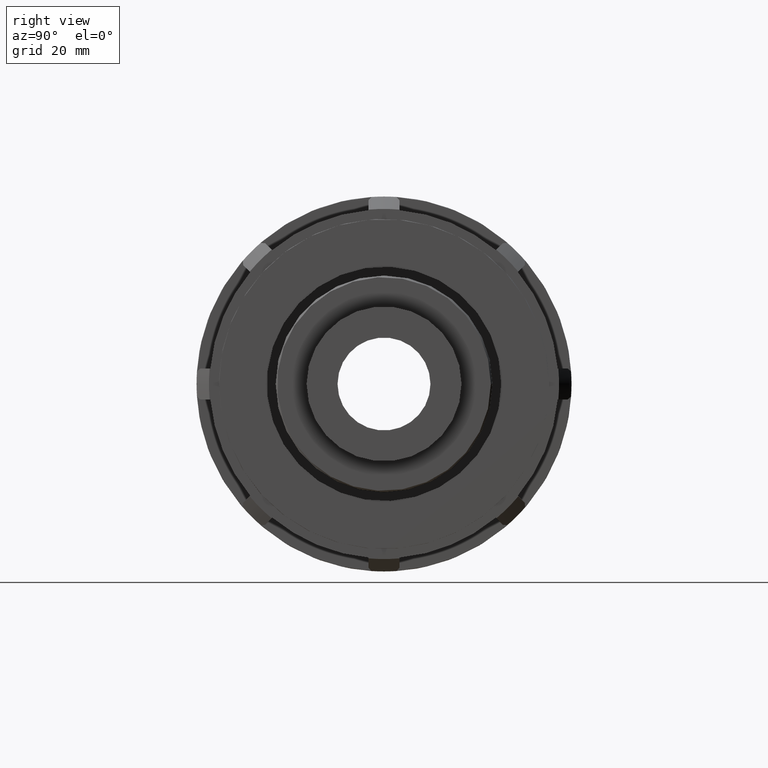
[diagram: clean part render]
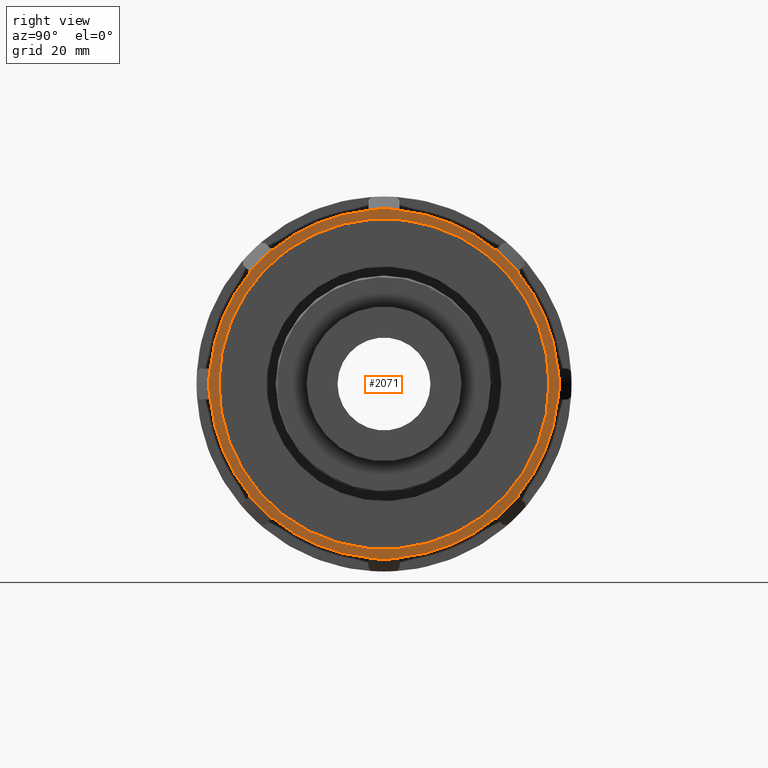
[diagram: same view with one face highlighted and labeled with its STEP entity id]
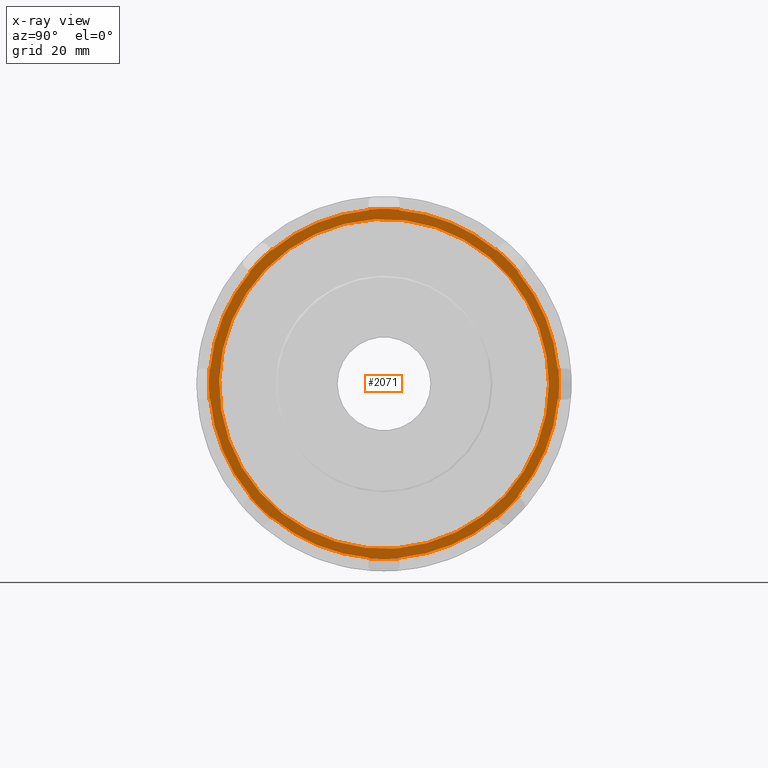
[diagram: x-ray of the same camera — body ghosted, the highlighted face saturated]
A machine part, right view. The second image highlights one B-rep face of the part: STEP entity #2071.
The next image is the same camera in x-ray: the body ghosted, the highlighted face saturated — about 0% of this face is hidden behind the body in this view.
In plain terms, the highlighted planar face has unit normal (1, 0, 0).
Its self-contained STEP definition (entity closure, byte-faithful):
#65=FACE_BOUND('',#411,.T.);
#112=CIRCLE('',#2171,29.88472);
#129=CIRCLE('',#2193,29.88472);
#130=CIRCLE('',#2198,29.88472);
#131=CIRCLE('',#2203,29.88472);
#132=CIRCLE('',#2208,29.88472);
#133=CIRCLE('',#2213,29.88472);
#134=CIRCLE('',#2218,29.88472);
#142=CIRCLE('',#2243,29.76);
#143=CIRCLE('',#2245,29.76);
#144=CIRCLE('',#2247,29.76);
#145=CIRCLE('',#2249,29.76);
#146=CIRCLE('',#2251,29.76);
#147=CIRCLE('',#2253,29.76);
#148=CIRCLE('',#2255,29.76);
#149=CIRCLE('',#2257,29.76);
#150=CIRCLE('',#2258,29.88472);
#151=CIRCLE('',#2259,28.16);
#288=FACE_OUTER_BOUND('',#410,.T.);
#410=EDGE_LOOP('',(#1808,#1809,#1810,#1811,#1812,#1813,#1814,#1815,#1816,
#1817,#1818,#1819,#1820,#1821,#1822,#1823,#1824,#1825,#1826,#1827,#1828,
#1829,#1830,#1831,#1832,#1833,#1834,#1835,#1836,#1837,#1838,#1839));
#411=EDGE_LOOP('',(#1840));
#555=LINE('',#3211,#735);
#562=LINE('',#3243,#742);
#569=LINE('',#3275,#749);
#576=LINE('',#3307,#756);
#583=LINE('',#3339,#763);
#590=LINE('',#3371,#770);
#597=LINE('',#3403,#777);
#598=LINE('',#3406,#778);
#601=LINE('',#3412,#781);
#604=LINE('',#3418,#784);
#607=LINE('',#3424,#787);
#610=LINE('',#3430,#790);
#613=LINE('',#3436,#793);
#616=LINE('',#3442,#796);
#622=LINE('',#3484,#802);
#623=LINE('',#3487,#803);
#735=VECTOR('',#2594,0.125213116454759);
#742=VECTOR('',#2611,0.125213116454761);
#749=VECTOR('',#2628,0.125213116454758);
#756=VECTOR('',#2645,0.125213116454761);
#763=VECTOR('',#2662,0.125213116454764);
#770=VECTOR('',#2679,0.125213116454757);
#777=VECTOR('',#2696,0.125213116454764);
#778=VECTOR('',#2699,0.125213116454764);
#781=VECTOR('',#2704,0.125213116454758);
#784=VECTOR('',#2709,0.125213116454757);
#787=VECTOR('',#2714,0.125213116454758);
#790=VECTOR('',#2719,0.125213116454757);
#793=VECTOR('',#2724,0.125213116454764);
#796=VECTOR('',#2729,0.125213116454757);
#802=VECTOR('',#2795,0.125213116454752);
#803=VECTOR('',#2798,0.125213116454752);
#893=VERTEX_POINT('',#3131);
#894=VERTEX_POINT('',#3135);
#927=VERTEX_POINT('',#3209);
#931=VERTEX_POINT('',#3225);
#932=VERTEX_POINT('',#3229);
#935=VERTEX_POINT('',#3241);
#939=VERTEX_POINT('',#3257);
#940=VERTEX_POINT('',#3261);
#943=VERTEX_POINT('',#3273);
#947=VERTEX_POINT('',#3289);
#948=VERTEX_POINT('',#3293);
#951=VERTEX_POINT('',#3305);
#955=VERTEX_POINT('',#3321);
#956=VERTEX_POINT('',#3325);
#959=VERTEX_POINT('',#3337);
#963=VERTEX_POINT('',#3353);
#964=VERTEX_POINT('',#3357);
#967=VERTEX_POINT('',#3369);
#971=VERTEX_POINT('',#3385);
#972=VERTEX_POINT('',#3389);
#975=VERTEX_POINT('',#3401);
#976=VERTEX_POINT('',#3405);
#978=VERTEX_POINT('',#3411);
#980=VERTEX_POINT('',#3417);
#982=VERTEX_POINT('',#3423);
#984=VERTEX_POINT('',#3429);
#986=VERTEX_POINT('',#3435);
#988=VERTEX_POINT('',#3441);
#992=VERTEX_POINT('',#3465);
#993=VERTEX_POINT('',#3481);
#994=VERTEX_POINT('',#3483);
#995=VERTEX_POINT('',#3485);
#996=VERTEX_POINT('',#3488);
#1135=EDGE_CURVE('',#893,#894,#112,.T.);
#1172=EDGE_CURVE('',#893,#927,#555,.T.);
#1178=EDGE_CURVE('',#931,#932,#129,.T.);
#1184=EDGE_CURVE('',#931,#935,#562,.T.);
#1190=EDGE_CURVE('',#939,#940,#130,.T.);
#1196=EDGE_CURVE('',#939,#943,#569,.T.);
#1202=EDGE_CURVE('',#947,#948,#131,.T.);
#1208=EDGE_CURVE('',#947,#951,#576,.T.);
#1214=EDGE_CURVE('',#955,#956,#132,.T.);
#1220=EDGE_CURVE('',#955,#959,#583,.T.);
#1226=EDGE_CURVE('',#963,#964,#133,.T.);
#1232=EDGE_CURVE('',#963,#967,#590,.T.);
#1238=EDGE_CURVE('',#971,#972,#134,.T.);
#1244=EDGE_CURVE('',#971,#975,#597,.T.);
#1245=EDGE_CURVE('',#976,#972,#598,.T.);
#1248=EDGE_CURVE('',#978,#894,#601,.T.);
#1251=EDGE_CURVE('',#980,#932,#604,.T.);
#1254=EDGE_CURVE('',#982,#940,#607,.T.);
#1257=EDGE_CURVE('',#984,#948,#610,.T.);
#1260=EDGE_CURVE('',#986,#956,#613,.T.);
#1263=EDGE_CURVE('',#988,#964,#616,.T.);
#1275=EDGE_CURVE('',#992,#976,#142,.T.);
#1277=EDGE_CURVE('',#975,#988,#143,.T.);
#1278=EDGE_CURVE('',#967,#986,#144,.T.);
#1279=EDGE_CURVE('',#959,#984,#145,.T.);
#1280=EDGE_CURVE('',#951,#982,#146,.T.);
#1281=EDGE_CURVE('',#943,#980,#147,.T.);
#1282=EDGE_CURVE('',#935,#978,#148,.T.);
#1283=EDGE_CURVE('',#927,#993,#149,.T.);
#1284=EDGE_CURVE('',#993,#994,#622,.T.);
#1285=EDGE_CURVE('',#995,#994,#150,.T.);
#1286=EDGE_CURVE('',#995,#992,#623,.T.);
#1287=EDGE_CURVE('',#996,#996,#151,.T.);
#1808=ORIENTED_EDGE('',*,*,#1135,.F.);
#1809=ORIENTED_EDGE('',*,*,#1172,.T.);
#1810=ORIENTED_EDGE('',*,*,#1283,.T.);
#1811=ORIENTED_EDGE('',*,*,#1284,.T.);
#1812=ORIENTED_EDGE('',*,*,#1285,.F.);
#1813=ORIENTED_EDGE('',*,*,#1286,.T.);
#1814=ORIENTED_EDGE('',*,*,#1275,.T.);
#1815=ORIENTED_EDGE('',*,*,#1245,.T.);
#1816=ORIENTED_EDGE('',*,*,#1238,.F.);
#1817=ORIENTED_EDGE('',*,*,#1244,.T.);
#1818=ORIENTED_EDGE('',*,*,#1277,.T.);
#1819=ORIENTED_EDGE('',*,*,#1263,.T.);
#1820=ORIENTED_EDGE('',*,*,#1226,.F.);
#1821=ORIENTED_EDGE('',*,*,#1232,.T.);
#1822=ORIENTED_EDGE('',*,*,#1278,.T.);
#1823=ORIENTED_EDGE('',*,*,#1260,.T.);
#1824=ORIENTED_EDGE('',*,*,#1214,.F.);
#1825=ORIENTED_EDGE('',*,*,#1220,.T.);
#1826=ORIENTED_EDGE('',*,*,#1279,.T.);
#1827=ORIENTED_EDGE('',*,*,#1257,.T.);
#1828=ORIENTED_EDGE('',*,*,#1202,.F.);
#1829=ORIENTED_EDGE('',*,*,#1208,.T.);
#1830=ORIENTED_EDGE('',*,*,#1280,.T.);
#1831=ORIENTED_EDGE('',*,*,#1254,.T.);
#1832=ORIENTED_EDGE('',*,*,#1190,.F.);
#1833=ORIENTED_EDGE('',*,*,#1196,.T.);
#1834=ORIENTED_EDGE('',*,*,#1281,.T.);
#1835=ORIENTED_EDGE('',*,*,#1251,.T.);
#1836=ORIENTED_EDGE('',*,*,#1178,.F.);
#1837=ORIENTED_EDGE('',*,*,#1184,.T.);
#1838=ORIENTED_EDGE('',*,*,#1282,.T.);
#1839=ORIENTED_EDGE('',*,*,#1248,.T.);
#1840=ORIENTED_EDGE('',*,*,#1287,.F.);
#1967=PLANE('',#2256);
#2071=ADVANCED_FACE('',(#288,#65),#1967,.T.);
#2171=AXIS2_PLACEMENT_3D('',#3136,#2535,#2536);
#2193=AXIS2_PLACEMENT_3D('',#3230,#2601,#2602);
#2198=AXIS2_PLACEMENT_3D('',#3262,#2618,#2619);
#2203=AXIS2_PLACEMENT_3D('',#3294,#2635,#2636);
#2208=AXIS2_PLACEMENT_3D('',#3326,#2652,#2653);
#2213=AXIS2_PLACEMENT_3D('',#3358,#2669,#2670);
#2218=AXIS2_PLACEMENT_3D('',#3390,#2686,#2687);
#2243=AXIS2_PLACEMENT_3D('',#3466,#2764,#2765);
#2245=AXIS2_PLACEMENT_3D('',#3469,#2769,#2770);
#2247=AXIS2_PLACEMENT_3D('',#3471,#2773,#2774);
#2249=AXIS2_PLACEMENT_3D('',#3473,#2777,#2778);
#2251=AXIS2_PLACEMENT_3D('',#3475,#2781,#2782);
#2253=AXIS2_PLACEMENT_3D('',#3477,#2785,#2786);
#2255=AXIS2_PLACEMENT_3D('',#3479,#2789,#2790);
#2256=AXIS2_PLACEMENT_3D('',#3480,#2791,#2792);
#2257=AXIS2_PLACEMENT_3D('',#3482,#2793,#2794);
#2258=AXIS2_PLACEMENT_3D('',#3486,#2796,#2797);
#2259=AXIS2_PLACEMENT_3D('',#3489,#2799,#2800);
#2535=DIRECTION('center_axis',(-1.,0.,0.));
#2536=DIRECTION('ref_axis',(0.,1.,0.));
#2594=DIRECTION('',(0.,-0.707106781186548,-0.707106781186547));
#2601=DIRECTION('center_axis',(-1.,0.,0.));
#2602=DIRECTION('ref_axis',(0.,1.,0.));
#2611=DIRECTION('',(0.,-1.,0.));
#2618=DIRECTION('center_axis',(-1.,0.,0.));
#2619=DIRECTION('ref_axis',(0.,1.,0.));
#2628=DIRECTION('',(0.,-0.707106781186547,0.707106781186548));
#2635=DIRECTION('center_axis',(-1.,0.,0.));
#2636=DIRECTION('ref_axis',(0.,1.,0.));
#2645=DIRECTION('',(0.,0.,1.));
#2652=DIRECTION('center_axis',(-1.,0.,0.));
#2653=DIRECTION('ref_axis',(0.,-1.,0.));
#2662=DIRECTION('',(0.,0.707106781186547,0.707106781186548));
#2669=DIRECTION('center_axis',(-1.,0.,0.));
#2670=DIRECTION('ref_axis',(0.,-1.,0.));
#2679=DIRECTION('',(0.,1.,2.22044604925031E-16));
#2686=DIRECTION('center_axis',(-1.,0.,0.));
#2687=DIRECTION('ref_axis',(0.,-1.,0.));
#2696=DIRECTION('',(0.,0.707106781186548,-0.707106781186547));
#2699=DIRECTION('',(0.,-0.707106781186548,0.707106781186547));
#2704=DIRECTION('',(0.,0.707106781186548,0.707106781186547));
#2709=DIRECTION('',(0.,1.,0.));
#2714=DIRECTION('',(0.,0.707106781186547,-0.707106781186548));
#2719=DIRECTION('',(0.,0.,-1.));
#2724=DIRECTION('',(0.,-0.707106781186547,-0.707106781186548));
#2729=DIRECTION('',(0.,-1.,-2.22044604925031E-16));
#2764=DIRECTION('center_axis',(1.,0.,0.));
#2765=DIRECTION('ref_axis',(0.,0.,-1.));
#2769=DIRECTION('center_axis',(1.,0.,0.));
#2770=DIRECTION('ref_axis',(0.,0.,-1.));
#2773=DIRECTION('center_axis',(1.,0.,0.));
#2774=DIRECTION('ref_axis',(0.,0.,-1.));
#2777=DIRECTION('center_axis',(1.,0.,0.));
#2778=DIRECTION('ref_axis',(0.,0.,-1.));
#2781=DIRECTION('center_axis',(1.,0.,0.));
#2782=DIRECTION('ref_axis',(0.,0.,-1.));
#2785=DIRECTION('center_axis',(1.,0.,0.));
#2786=DIRECTION('ref_axis',(0.,0.,-1.));
#2789=DIRECTION('center_axis',(1.,0.,0.));
#2790=DIRECTION('ref_axis',(0.,0.,-1.));
#2791=DIRECTION('center_axis',(1.,0.,0.));
#2792=DIRECTION('ref_axis',(0.,0.,-1.));
#2793=DIRECTION('center_axis',(1.,0.,0.));
#2794=DIRECTION('ref_axis',(0.,0.,-1.));
#2795=DIRECTION('',(0.,-1.43998400214477E-16,1.));
#2796=DIRECTION('center_axis',(-1.,0.,0.));
#2797=DIRECTION('ref_axis',(0.,1.,0.));
#2798=DIRECTION('',(0.,1.43998400214477E-16,-1.));
#2799=DIRECTION('center_axis',(1.,0.,0.));
#2800=DIRECTION('ref_axis',(0.,0.,-1.));
#3131=CARTESIAN_POINT('',(33.11,19.1791539463241,22.9184760265948));
#3135=CARTESIAN_POINT('',(33.11,22.9184760265948,19.1791539463241));
#3136=CARTESIAN_POINT('Origin',(33.11,0.,0.));
#3209=CARTESIAN_POINT('',(33.11,19.0906149025854,22.8299369828561));
#3211=CARTESIAN_POINT('',(33.11,20.6803803699153,24.419702450186));
#3225=CARTESIAN_POINT('',(33.11,29.767519625733,2.6441));
#3229=CARTESIAN_POINT('',(33.11,29.767519625733,-2.6441));
#3230=CARTESIAN_POINT('Origin',(33.11,0.,0.));
#3241=CARTESIAN_POINT('',(33.11,29.6423065092783,2.6441));
#3243=CARTESIAN_POINT('',(33.11,31.8905743941686,2.6441));
#3257=CARTESIAN_POINT('',(33.11,22.9184760265948,-19.1791539463241));
#3261=CARTESIAN_POINT('',(33.11,19.1791539463241,-22.9184760265948));
#3262=CARTESIAN_POINT('Origin',(33.11,0.,0.));
#3273=CARTESIAN_POINT('',(33.11,22.8299369828561,-19.0906149025854));
#3275=CARTESIAN_POINT('',(33.11,24.419702450186,-20.6803803699153));
#3289=CARTESIAN_POINT('',(33.11,2.6441,-29.767519625733));
#3293=CARTESIAN_POINT('',(33.11,-2.6441,-29.767519625733));
#3294=CARTESIAN_POINT('Origin',(33.11,0.,0.));
#3305=CARTESIAN_POINT('',(33.11,2.6441,-29.6423065092783));
#3307=CARTESIAN_POINT('',(33.11,2.6441,-31.8905743941686));
#3321=CARTESIAN_POINT('',(33.11,-19.1791539463241,-22.9184760265948));
#3325=CARTESIAN_POINT('',(33.11,-22.9184760265948,-19.1791539463241));
#3326=CARTESIAN_POINT('Origin',(33.11,0.,0.));
#3337=CARTESIAN_POINT('',(33.11,-19.0906149025854,-22.8299369828561));
#3339=CARTESIAN_POINT('',(33.11,-20.6803803699153,-24.419702450186));
#3353=CARTESIAN_POINT('',(33.11,-29.767519625733,-2.6441));
#3357=CARTESIAN_POINT('',(33.11,-29.767519625733,2.6441));
#3358=CARTESIAN_POINT('Origin',(33.11,0.,0.));
#3369=CARTESIAN_POINT('',(33.11,-29.6423065092783,-2.6441));
#3371=CARTESIAN_POINT('',(33.11,-31.8905743941686,-2.6441));
#3385=CARTESIAN_POINT('',(33.11,-22.9184760265948,19.1791539463241));
#3389=CARTESIAN_POINT('',(33.11,-19.1791539463241,22.9184760265948));
#3390=CARTESIAN_POINT('Origin',(33.11,0.,0.));
#3401=CARTESIAN_POINT('',(33.11,-22.8299369828561,19.0906149025854));
#3403=CARTESIAN_POINT('',(33.11,-24.419702450186,20.6803803699153));
#3405=CARTESIAN_POINT('',(33.11,-19.0906149025854,22.8299369828561));
#3406=CARTESIAN_POINT('',(33.11,-17.9544951233688,21.6938172036395));
#3411=CARTESIAN_POINT('',(33.11,22.8299369828561,19.0906149025854));
#3412=CARTESIAN_POINT('',(33.11,21.6938172036395,17.9544951233688));
#3417=CARTESIAN_POINT('',(33.11,29.6423065092783,-2.6441));
#3418=CARTESIAN_POINT('',(33.11,28.0355905090298,-2.6441));
#3423=CARTESIAN_POINT('',(33.11,19.0906149025854,-22.8299369828561));
#3424=CARTESIAN_POINT('',(33.11,17.9544951233688,-21.6938172036395));
#3429=CARTESIAN_POINT('',(33.11,-2.6441,-29.6423065092783));
#3430=CARTESIAN_POINT('',(33.11,-2.6441,-28.0355905090298));
#3435=CARTESIAN_POINT('',(33.11,-22.8299369828561,-19.0906149025854));
#3436=CARTESIAN_POINT('',(33.11,-21.6938172036395,-17.9544951233688));
#3441=CARTESIAN_POINT('',(33.11,-29.6423065092783,2.64409999999999));
#3442=CARTESIAN_POINT('',(33.11,-28.0355905090298,2.6441));
#3465=CARTESIAN_POINT('',(33.11,-2.6441,29.6423065092783));
#3466=CARTESIAN_POINT('Origin',(33.11,0.,0.));
#3469=CARTESIAN_POINT('Origin',(33.11,0.,0.));
#3471=CARTESIAN_POINT('Origin',(33.11,0.,0.));
#3473=CARTESIAN_POINT('Origin',(33.11,0.,0.));
#3475=CARTESIAN_POINT('Origin',(33.11,0.,0.));
#3477=CARTESIAN_POINT('Origin',(33.11,0.,0.));
#3479=CARTESIAN_POINT('Origin',(33.11,0.,0.));
#3480=CARTESIAN_POINT('Origin',(33.11,28.16,0.));
#3481=CARTESIAN_POINT('',(33.11,2.64409999999999,29.6423065092783));
#3482=CARTESIAN_POINT('Origin',(33.11,0.,0.));
#3483=CARTESIAN_POINT('',(33.11,2.64409999999999,29.767519625733));
#3484=CARTESIAN_POINT('',(33.11,2.6441,28.0355905090298));
#3485=CARTESIAN_POINT('',(33.11,-2.6441,29.767519625733));
#3486=CARTESIAN_POINT('Origin',(33.11,0.,0.));
#3487=CARTESIAN_POINT('',(33.11,-2.6441,31.8905743941686));
#3488=CARTESIAN_POINT('',(33.11,21.6938172036395,17.9544951233688));
#3489=CARTESIAN_POINT('Origin',(33.11,0.,0.));